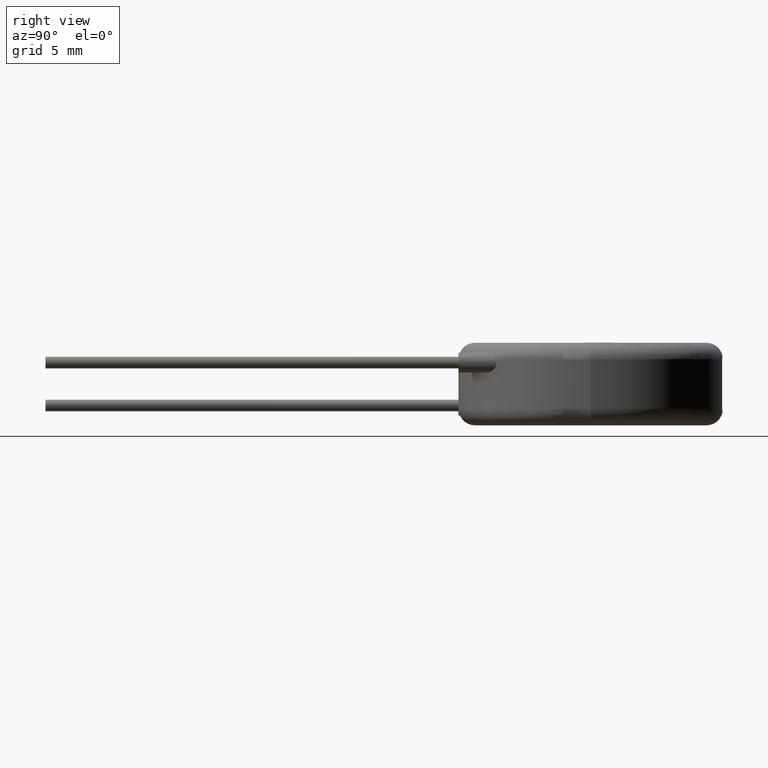
[diagram: clean part render]
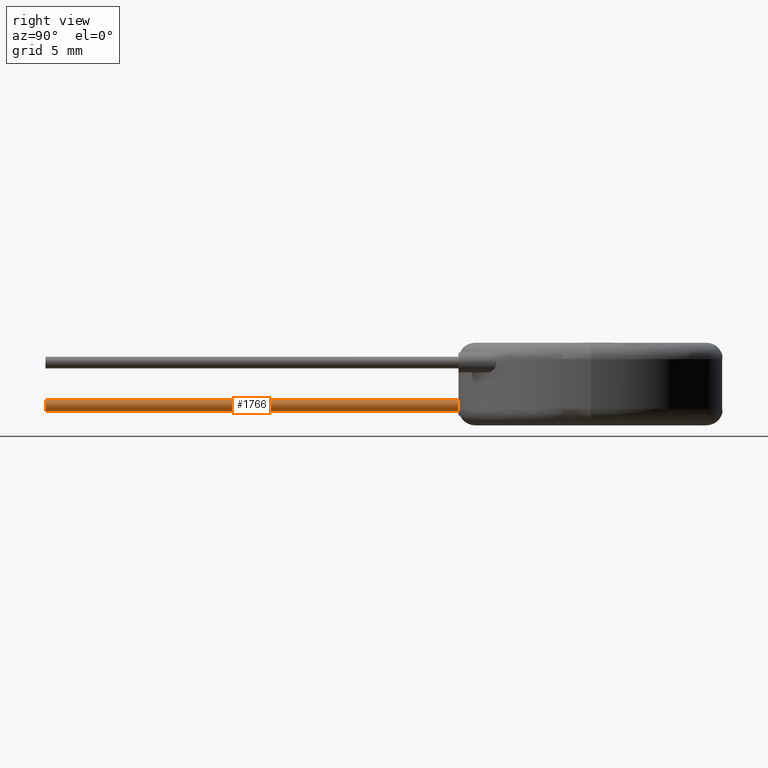
[diagram: same view with one face highlighted and labeled with its STEP entity id]
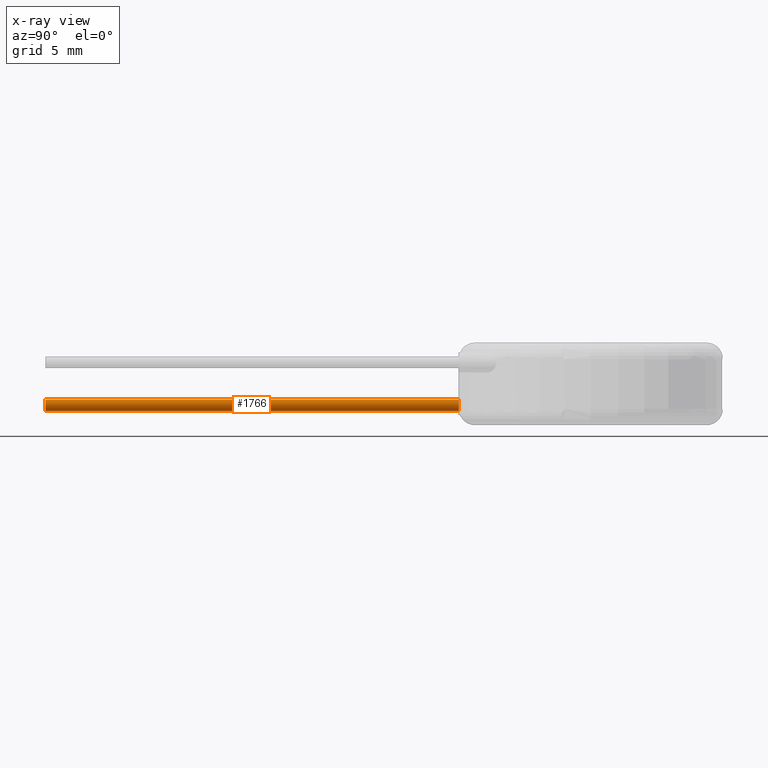
[diagram: x-ray of the same camera — body ghosted, the highlighted face saturated]
A machine part, right view. The second image highlights one B-rep face of the part: STEP entity #1766.
The next image is the same camera in x-ray: the body ghosted, the highlighted face saturated — about 0% of this face is hidden behind the body in this view.
In plain terms, the highlighted cylindrical surface (edge-blend (fillet) strip) has radius 0.35 mm, axis along (-0, 1, -0).
Its self-contained STEP definition (entity closure, byte-faithful):
#72 = CIRCLE ( 'NONE', #1591, 0.3499999999999996447 ) ;
#174 = CARTESIAN_POINT ( 'NONE',  ( -4.999999999999999112, -33.00000000000000000, 0.8499999999999976463 ) ) ;
#247 = ORIENTED_EDGE ( 'NONE', *, *, #810, .T. ) ;
#384 = CARTESIAN_POINT ( 'NONE',  ( -4.999999999999999112, -33.00000000000000000, 1.549999999999997380 ) ) ;
#395 = CIRCLE ( 'NONE', #2879, 0.3499999999999998113 ) ;
#421 = CYLINDRICAL_SURFACE ( 'NONE', #466, 0.3499999999999998113 ) ;
#435 = EDGE_CURVE ( 'NONE', #2264, #1335, #2489, .T. ) ;
#466 = AXIS2_PLACEMENT_3D ( 'NONE', #2875, #2316, #2365 ) ;
#603 = DIRECTION ( 'NONE',  ( 1.665334536937734811E-16, 1.000000000000000000, 0.000000000000000000 ) ) ;
#612 = CARTESIAN_POINT ( 'NONE',  ( -4.999999999999999112, -8.000000000000000000, 0.8500000000000003109 ) ) ;
#625 = CARTESIAN_POINT ( 'NONE',  ( -4.999999999999999112, -8.000000000000001776, 0.8500000000000003109 ) ) ;
#792 = VECTOR ( 'NONE', #1668, 1000.000000000000000 ) ;
#810 = EDGE_CURVE ( 'NONE', #1335, #2015, #395, .T. ) ;
#1167 = DIRECTION ( 'NONE',  ( -1.000000000000000000, 0.000000000000000000, 0.000000000000000000 ) ) ;
#1335 = VERTEX_POINT ( 'NONE', #612 ) ;
#1399 = CARTESIAN_POINT ( 'NONE',  ( -4.999999999999999112, -8.000000000000000000, 1.550000000000000044 ) ) ;
#1401 = DIRECTION ( 'NONE',  ( 0.000000000000000000, 0.000000000000000000, 1.000000000000000000 ) ) ;
#1587 = ORIENTED_EDGE ( 'NONE', *, *, #2009, .T. ) ;
#1591 = AXIS2_PLACEMENT_3D ( 'NONE', #3321, #603, #1167 ) ;
#1605 = VERTEX_POINT ( 'NONE', #384 ) ;
#1613 = EDGE_CURVE ( 'NONE', #1605, #2015, #2823, .T. ) ;
#1642 = ORIENTED_EDGE ( 'NONE', *, *, #435, .T. ) ;
#1668 = DIRECTION ( 'NONE',  ( -0.000000000000000000, 1.000000000000000000, -0.000000000000000000 ) ) ;
#1766 = ADVANCED_FACE ( 'NONE', ( #2330 ), #421, .T. ) ;
#2008 = CARTESIAN_POINT ( 'NONE',  ( -4.999999999999999112, -8.000000000000001776, 1.550000000000000044 ) ) ;
#2009 = EDGE_CURVE ( 'NONE', #1605, #2264, #72, .T. ) ;
#2015 = VERTEX_POINT ( 'NONE', #1399 ) ;
#2264 = VERTEX_POINT ( 'NONE', #174 ) ;
#2286 = DIRECTION ( 'NONE',  ( -0.000000000000000000, 1.000000000000000000, -0.000000000000000000 ) ) ;
#2315 = ORIENTED_EDGE ( 'NONE', *, *, #1613, .F. ) ;
#2316 = DIRECTION ( 'NONE',  ( -0.000000000000000000, 1.000000000000000000, -0.000000000000000000 ) ) ;
#2330 = FACE_OUTER_BOUND ( 'NONE', #3388, .T. ) ;
#2365 = DIRECTION ( 'NONE',  ( 0.000000000000000000, 0.000000000000000000, 1.000000000000000000 ) ) ;
#2489 = LINE ( 'NONE', #625, #2717 ) ;
#2717 = VECTOR ( 'NONE', #2286, 1000.000000000000000 ) ;
#2823 = LINE ( 'NONE', #2008, #792 ) ;
#2875 = CARTESIAN_POINT ( 'NONE',  ( -4.999999999999999112, -8.000000000000001776, 1.200000000000000178 ) ) ;
#2879 = AXIS2_PLACEMENT_3D ( 'NONE', #3079, #3306, #1401 ) ;
#3079 = CARTESIAN_POINT ( 'NONE',  ( -4.999999999999999112, -8.000000000000000000, 1.200000000000000178 ) ) ;
#3306 = DIRECTION ( 'NONE',  ( -0.000000000000000000, -1.000000000000000000, -0.000000000000000000 ) ) ;
#3321 = CARTESIAN_POINT ( 'NONE',  ( -4.999999999999999112, -33.00000000000000000, 1.199999999999997513 ) ) ;
#3388 = EDGE_LOOP ( 'NONE', ( #1587, #1642, #247, #2315 ) ) ;